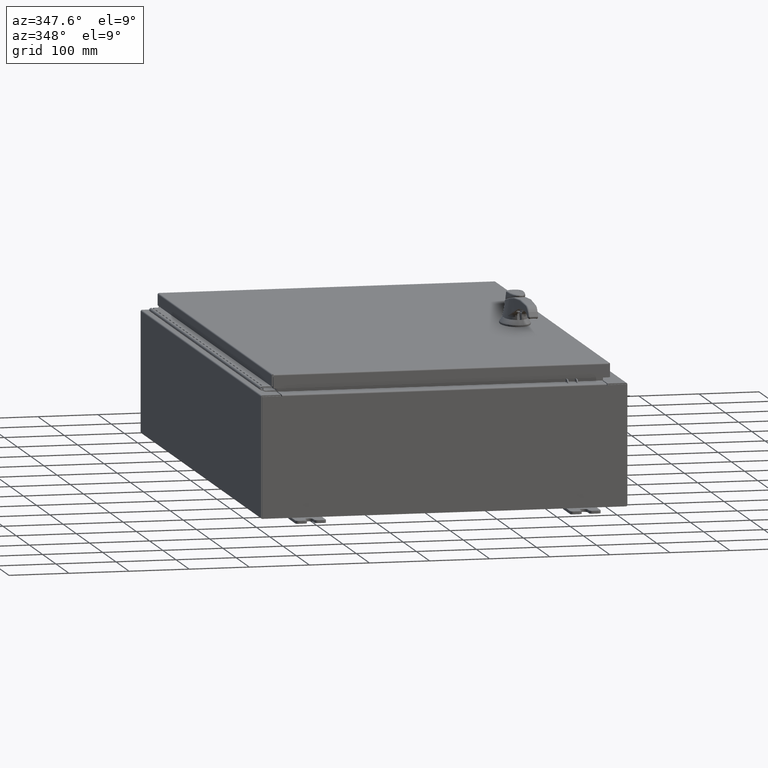
[diagram: clean part render]
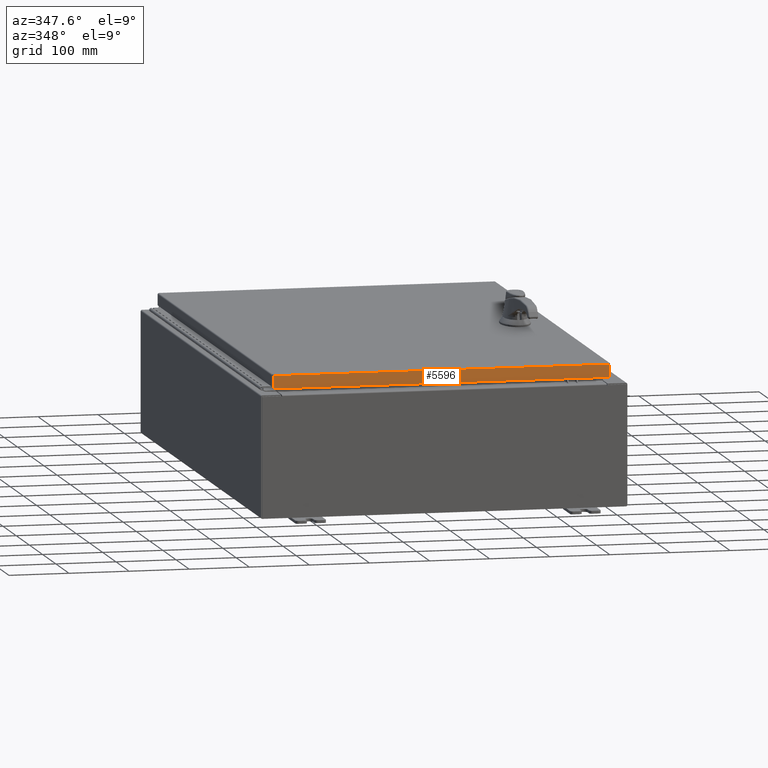
[diagram: same view with one face highlighted and labeled with its STEP entity id]
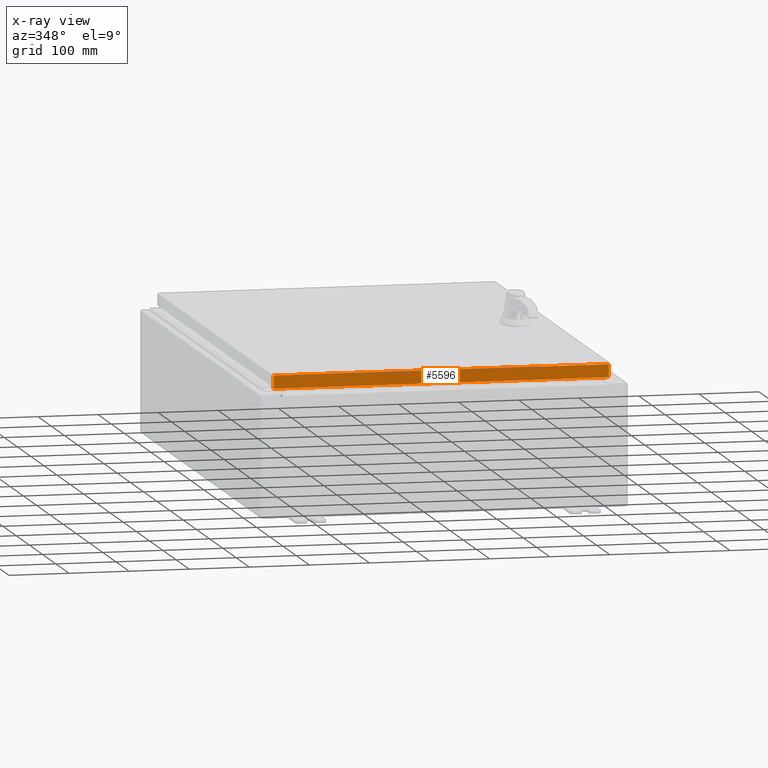
[diagram: x-ray of the same camera — body ghosted, the highlighted face saturated]
A machine part, auxiliary view. The second image highlights one B-rep face of the part: STEP entity #5596.
The next image is the same camera in x-ray: the body ghosted, the highlighted face saturated — about 0% of this face is hidden behind the body in this view.
In plain terms, the highlighted planar face has unit normal (-0, 1, -0).
Its self-contained STEP definition (entity closure, byte-faithful):
#68 = DIRECTION ( 'NONE',  ( 0.0000000000000000000, 2.532419924601866100E-015, 1.000000000000000000 ) ) ;
#5596 = ADVANCED_FACE ( 'NONE', ( #44459 ), #113241, .F. ) ;
#7722 = CARTESIAN_POINT ( 'NONE',  ( -10.98915786437627200, -17.09399999999999800, -0.08770000000000008300 ) ) ;
#9515 = DIRECTION ( 'NONE',  ( 1.000000000000000000, 3.122488847327593500E-031, -7.817847125977043000E-046 ) ) ;
#14223 = EDGE_LOOP ( 'NONE', ( #82383, #52771, #41915, #119378 ) ) ;
#15024 = EDGE_CURVE ( 'NONE', #69843, #26135, #45601, .T. ) ;
#20304 = VECTOR ( 'NONE', #9515, 39.37007874015748100 ) ;
#22523 = VERTEX_POINT ( 'NONE', #22769 ) ;
#22769 = CARTESIAN_POINT ( 'NONE',  ( 10.98915786437626500, -17.09399999999999800, -0.9376999999999997600 ) ) ;
#25232 = EDGE_CURVE ( 'NONE', #69843, #40480, #83814, .T. ) ;
#26135 = VERTEX_POINT ( 'NONE', #27949 ) ;
#27949 = CARTESIAN_POINT ( 'NONE',  ( 10.98915786437626700, -17.09399999999999800, -0.08770000000000008300 ) ) ;
#29569 = EDGE_CURVE ( 'NONE', #22523, #40480, #66928, .T. ) ;
#40480 = VERTEX_POINT ( 'NONE', #69653 ) ;
#40874 = CARTESIAN_POINT ( 'NONE',  ( 10.98915786437626500, -17.09399999999999800, -0.07469999999999980800 ) ) ;
#41915 = ORIENTED_EDGE ( 'NONE', *, *, #29569, .F. ) ;
#44459 = FACE_OUTER_BOUND ( 'NONE', #14223, .T. ) ;
#45601 = LINE ( 'NONE', #104266, #20304 ) ;
#48289 = CARTESIAN_POINT ( 'NONE',  ( 11.07799999999999600, -17.09399999999999800, -0.9376999999999997600 ) ) ;
#50412 = DIRECTION ( 'NONE',  ( -0.0000000000000000000, -2.532419924601866100E-015, -1.000000000000000000 ) ) ;
#52771 = ORIENTED_EDGE ( 'NONE', *, *, #25232, .T. ) ;
#57062 = DIRECTION ( 'NONE',  ( -3.122488847327593000E-031, 1.000000000000000000, -2.532419924601866100E-015 ) ) ;
#65847 = CARTESIAN_POINT ( 'NONE',  ( -10.98915786437626900, -17.09399999999999800, 4.354999984715587200E-014 ) ) ;
#66928 = LINE ( 'NONE', #48289, #120515 ) ;
#69653 = CARTESIAN_POINT ( 'NONE',  ( -10.98915786437627200, -17.09399999999999800, -0.9376999999999970900 ) ) ;
#69843 = VERTEX_POINT ( 'NONE', #7722 ) ;
#80789 = VECTOR ( 'NONE', #94576, 39.37007874015748100 ) ;
#82383 = ORIENTED_EDGE ( 'NONE', *, *, #15024, .F. ) ;
#83001 = VECTOR ( 'NONE', #50412, 39.37007874015748100 ) ;
#83814 = LINE ( 'NONE', #65847, #80789 ) ;
#94576 = DIRECTION ( 'NONE',  ( 0.0000000000000000000, -2.532419924601866100E-015, -1.000000000000000000 ) ) ;
#95676 = EDGE_CURVE ( 'NONE', #26135, #22523, #108202, .T. ) ;
#104266 = CARTESIAN_POINT ( 'NONE',  ( 11.07799999999999600, -17.09399999999999800, -0.08770000000000008300 ) ) ;
#108202 = LINE ( 'NONE', #40874, #83001 ) ;
#113241 = PLANE ( 'NONE',  #115884 ) ;
#114046 = CARTESIAN_POINT ( 'NONE',  ( 5.337582435621786900E-030, -17.09399999999999800, 4.354999984715587200E-014 ) ) ;
#114807 = DIRECTION ( 'NONE',  ( -1.000000000000000000, -0.0000000000000000000, 1.233005954894504400E-016 ) ) ;
#115884 = AXIS2_PLACEMENT_3D ( 'NONE', #114046, #57062, #68 ) ;
#119378 = ORIENTED_EDGE ( 'NONE', *, *, #95676, .F. ) ;
#120515 = VECTOR ( 'NONE', #114807, 39.37007874015748100 ) ;